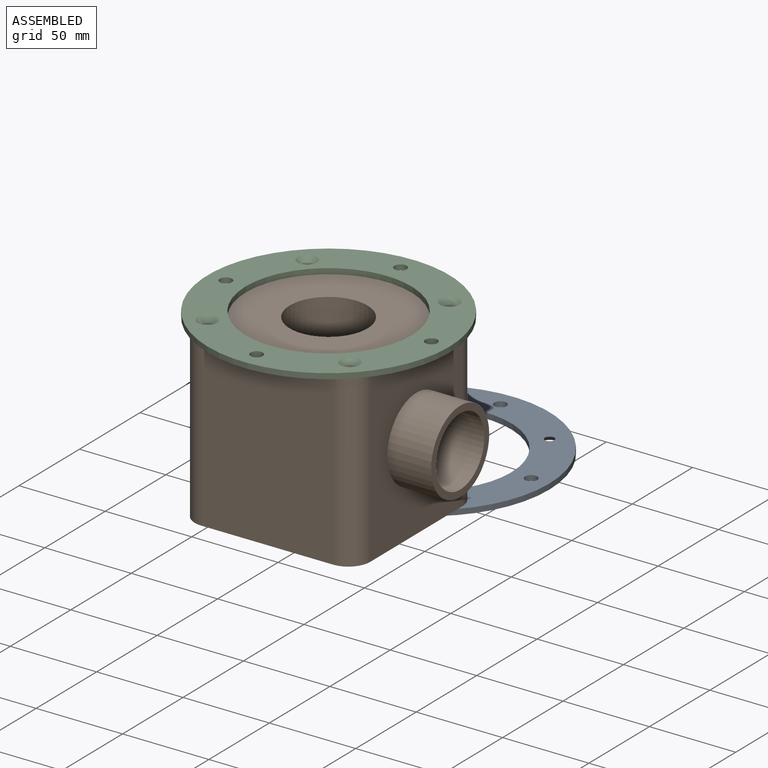
[diagram: assembled view]
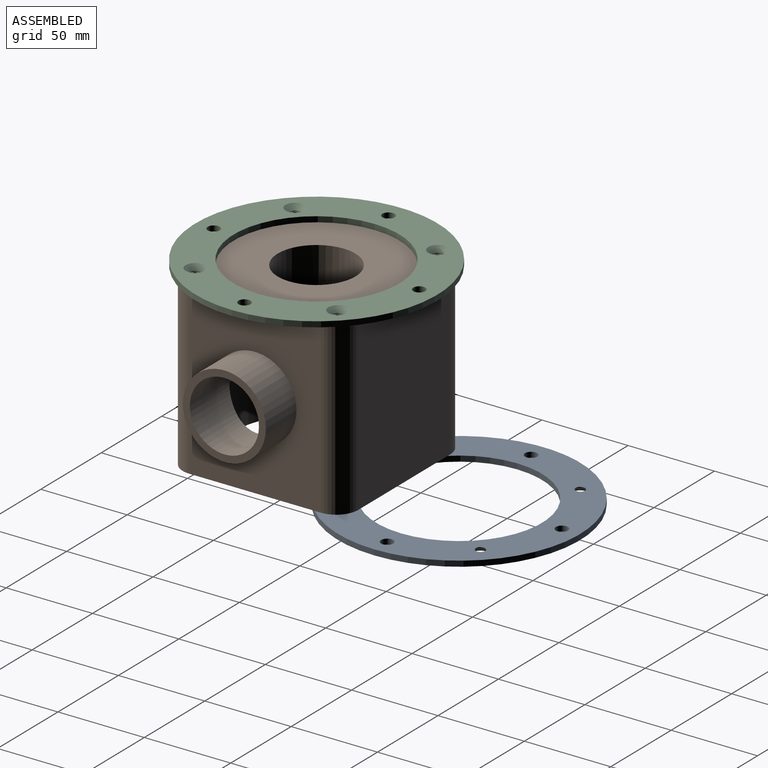
[diagram: assembled view, second angle]
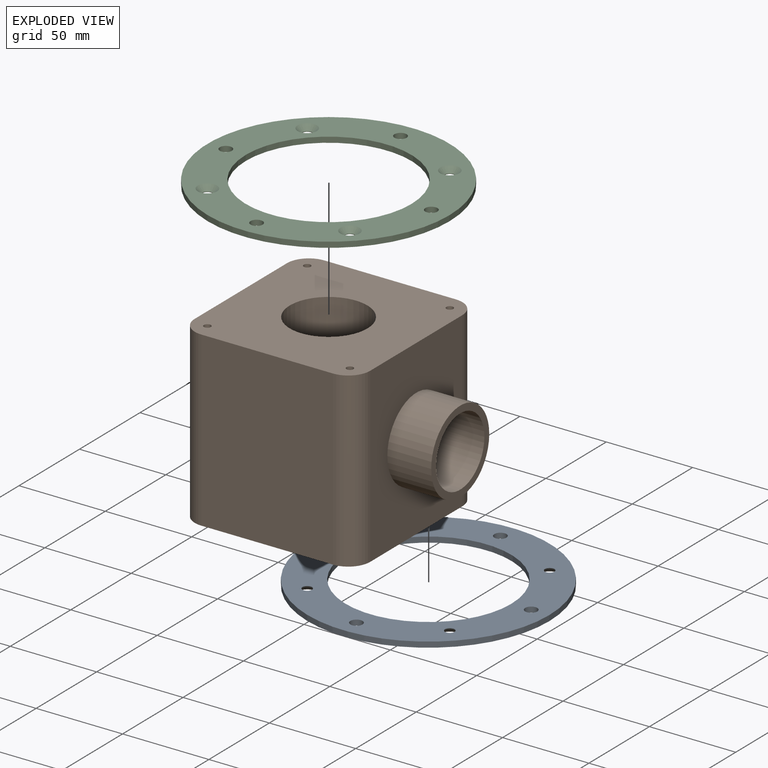
[diagram: exploded view]
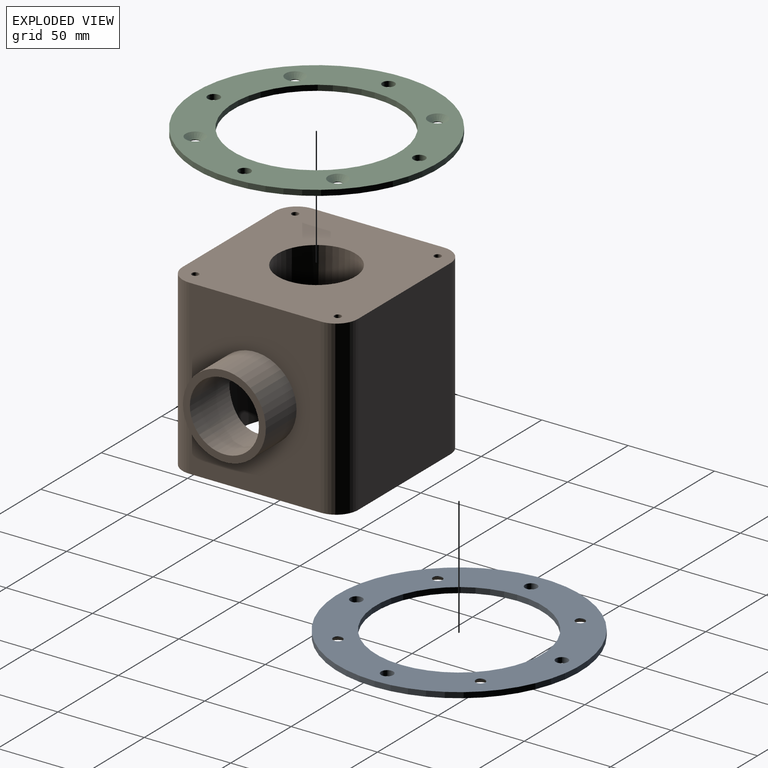
[diagram: exploded view, second angle]
ASSEMBLY  parts=3 mates=3
PART A: 16 faces, bbox 140x140x3.2 mm
  f0: cylinder r=3.5mm len=7mm, axis (0,0,-1), area 69.8mm2, adj f6,f7
  f1: cylinder r=3.5mm len=7mm, axis (0,0,-1), area 69.8mm2, adj f6,f7
  f2: cylinder r=3.5mm len=7mm, axis (0,0,-1), area 69.8mm2, adj f6,f7
  f3: cylinder r=3.5mm len=7mm, axis (0,0,-1), area 69.8mm2, adj f6,f7
  f4: cylinder r=48mm len=96mm, axis (0,0,-1), area 957.6mm2, adj f6,f7
  f5: cylinder r=70mm len=140mm, axis (0,0,-1), area 1396.4mm2, adj f6,f7
  f6: plane 140x140mm, normal (0,0,1), area 7607.6mm2, adj f0,f1,f2,f3,f4,f5,f9,f11
  f7: plane 140x140mm, normal (0,0,-1), area 7906.6mm2, adj f0,f1,f2,f3,f4,f5,f8,f10
  f8: cylinder r=2.75mm len=5.5mm, axis (0,0,1), area 5.6mm2, adj f7,f9
  f9: cone r=2.75mm half-angle=45deg, axis (0,0,1), area 105.7mm2, adj f6,f8
  f10: cylinder r=2.75mm len=5.5mm, axis (0,0,1), area 5.6mm2, adj f7,f11
  f11: cone r=2.75mm half-angle=45deg, axis (0,0,1), area 105.7mm2, adj f6,f10
  f12: cylinder r=2.75mm len=5.5mm, axis (0,0,1), area 5.6mm2, adj f7,f13
  f13: cone r=2.75mm half-angle=45deg, axis (0,0,1), area 105.7mm2, adj f6,f12
  f14: cylinder r=2.75mm len=5.5mm, axis (0,0,1), area 5.6mm2, adj f7,f15
  f15: cone r=2.75mm half-angle=45deg, axis (0,0,1), area 105.7mm2, adj f6,f14
PART B: 32 faces, bbox 127x101.6x100 mm
  f0: cylinder r=20mm len=65.89mm, axis (1,0,0), area 5628.5mm2, adj f7,f8,f9,f11
  f1: plane 100x76.2mm, normal (0,1,0), area 7620mm2, adj f5,f6,f12,f15
  f2: plane 100x76.2mm, normal (-1,0,0), area 7620mm2, adj f5,f6,f12,f13
  f3: plane 100x76.2mm, normal (0,-1,0), area 7620mm2, adj f5,f6,f13,f14
  f4: plane 100x76.2mm, normal (1,0,0), area 5810.4mm2, adj f5,f6,f10,f14,f15
  f5: plane 101.6x101.6mm, normal (0,0,1), area 2895.6mm2, adj f1,f2,f3,f4,f7,f12,f13,f14
  f6: plane 101.6x101.6mm, normal (0,0,-1), area 8543.4mm2, adj f1,f2,f3,f4,f9,f12,f13,f14
  f7: cylinder r=48mm len=96mm, axis (0,0,1), area 14436.7mm2, adj f0,f5,f8
  f8: plane 96x91.64mm, normal (0,0,1), area 4545.4mm2, adj f0,f7,f9
  f9: cylinder r=22.5mm len=50mm, axis (0,0,-1), area 6343.7mm2, adj f0,f6,f8
  f10: cylinder r=24mm len=48mm, axis (-1,0,0), area 3830.2mm2, adj f4,f11
  f11: plane 48x48mm, normal (1,0,0), area 552.9mm2, adj f0,f10
  f12: cylinder r=12.7mm len=100mm, axis (0,0,-1), area 1994.9mm2, adj f1,f2,f5,f6
  f13: cylinder r=12.7mm len=100mm, axis (0,0,1), area 1994.9mm2, adj f2,f3,f5,f6
  f14: cylinder r=12.7mm len=100mm, axis (0,0,-1), area 1994.9mm2, adj f3,f4,f5,f6
  f15: cylinder r=12.7mm len=100mm, axis (0,0,1), area 1994.9mm2, adj f1,f4,f5,f6
  f16: cylinder r=2mm len=15.69mm, axis (0,0,1), area 197.1mm2, adj f5,f17
  f17: cone r=0mm half-angle=59deg, axis (0,0,1), area 14.7mm2, adj f16
  f18: cylinder r=2mm len=15.69mm, axis (0,0,1), area 197.1mm2, adj f5,f19
  f19: cone r=0mm half-angle=59deg, axis (0,0,1), area 14.7mm2, adj f18
  f20: cylinder r=2mm len=15.69mm, axis (0,0,1), area 197.1mm2, adj f5,f21
  f21: cone r=0mm half-angle=59deg, axis (0,0,1), area 14.7mm2, adj f20
  f22: cylinder r=2mm len=15.69mm, axis (0,0,1), area 197.1mm2, adj f5,f23
  f23: cone r=0mm half-angle=59deg, axis (0,0,1), area 14.7mm2, adj f22
  f24: cylinder r=2mm len=15.7mm, axis (0,0,-1), area 197.3mm2, adj f6,f25
  f25: cone r=0mm half-angle=59deg, axis (0,0,-1), area 14.7mm2, adj f24
  f26: cylinder r=2mm len=15.7mm, axis (0,0,-1), area 197.3mm2, adj f6,f27
  f27: cone r=0mm half-angle=59deg, axis (0,0,-1), area 14.7mm2, adj f26
  f28: cylinder r=2mm len=15.7mm, axis (0,0,-1), area 197.3mm2, adj f6,f29
  f29: cone r=0mm half-angle=59deg, axis (0,0,-1), area 14.7mm2, adj f28
  f30: cylinder r=2mm len=15.7mm, axis (0,0,-1), area 197.3mm2, adj f6,f31
  f31: cone r=0mm half-angle=59deg, axis (0,0,-1), area 14.7mm2, adj f30
PART C: same geometry as A
PLACE A rot(axis=(1,0,0),180deg) t=(28.52,12.22,29.46)mm
PLACE B rot(axis=(1,0,0),180deg) t=(28.52,-70.33,81.04)mm
PLACE C t=(28.52,-70.33,132.63)mm
MATE cylindrical B.f22 <-> C.f8  axis (0,0,1) through (-12.75,-29.05,131.04)mm
MATE planar B.f7 <-> C.f0  axis (0,0,1) through (28.52,-70.33,131.04)mm
MATE planar B.f22 <-> A.f8  axis (0,0,-1) through (-12.75,-29.05,31.04)mm
